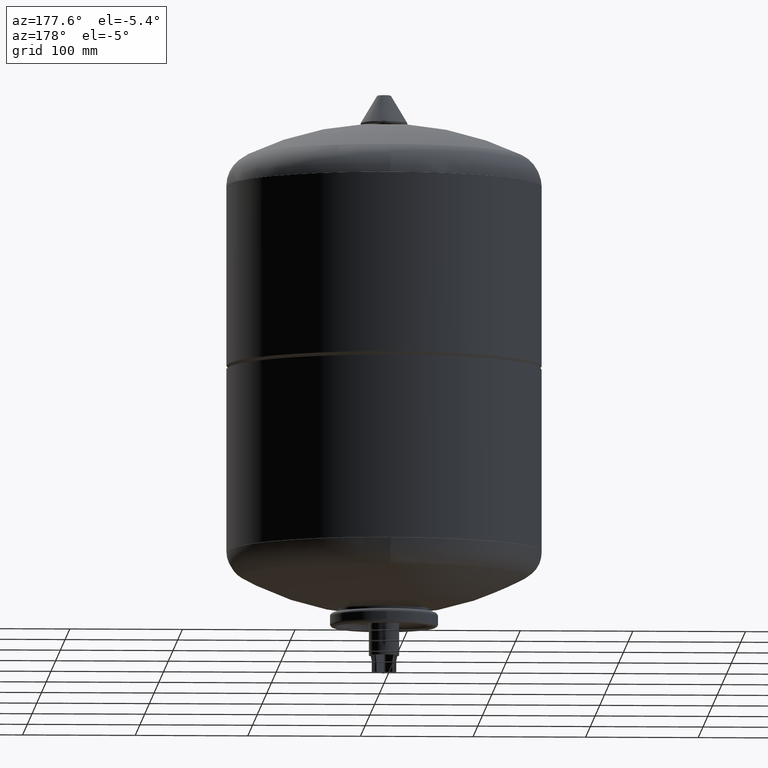
[diagram: clean part render]
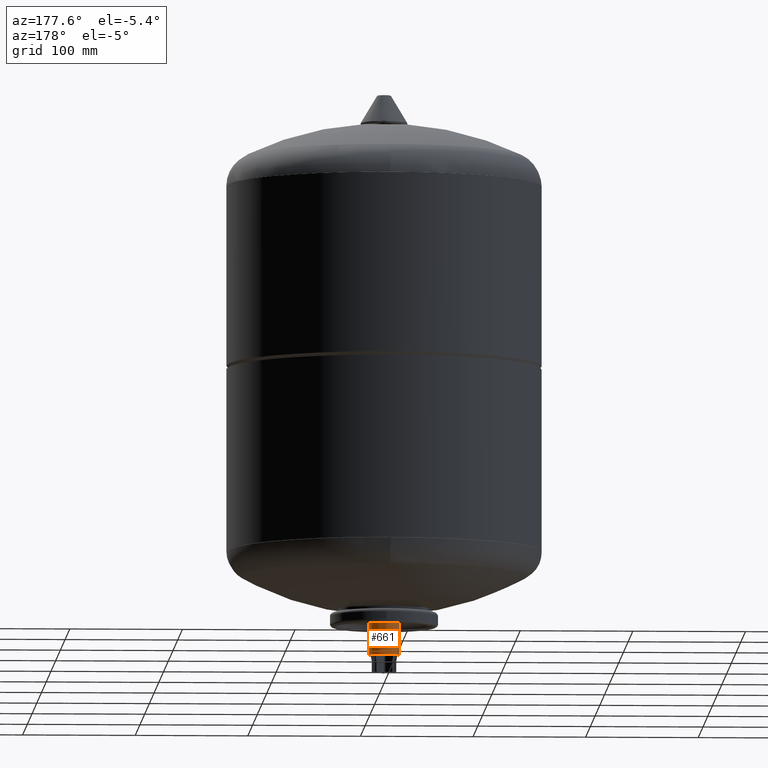
[diagram: same view with one face highlighted and labeled with its STEP entity id]
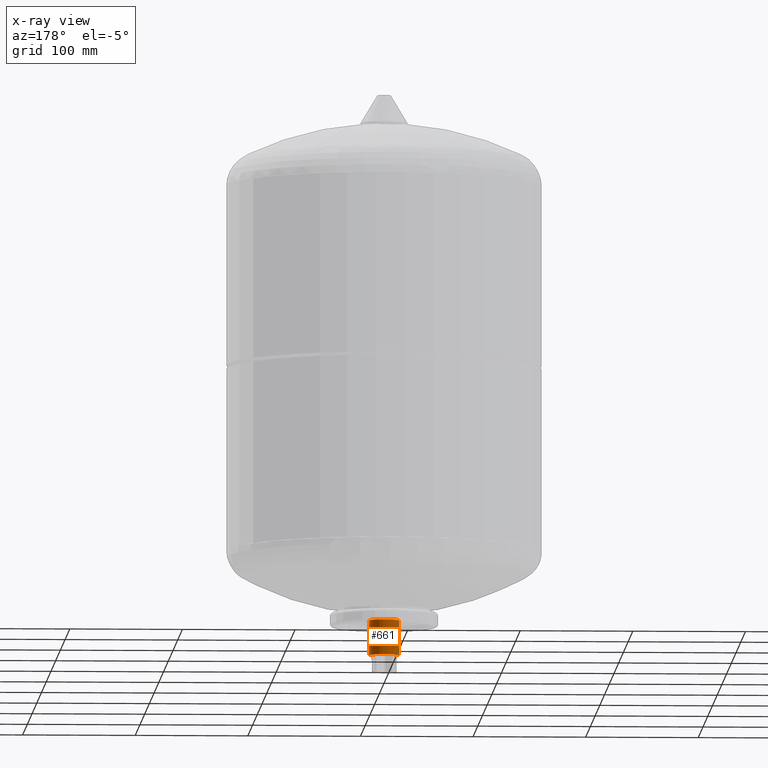
[diagram: x-ray of the same camera — body ghosted, the highlighted face saturated]
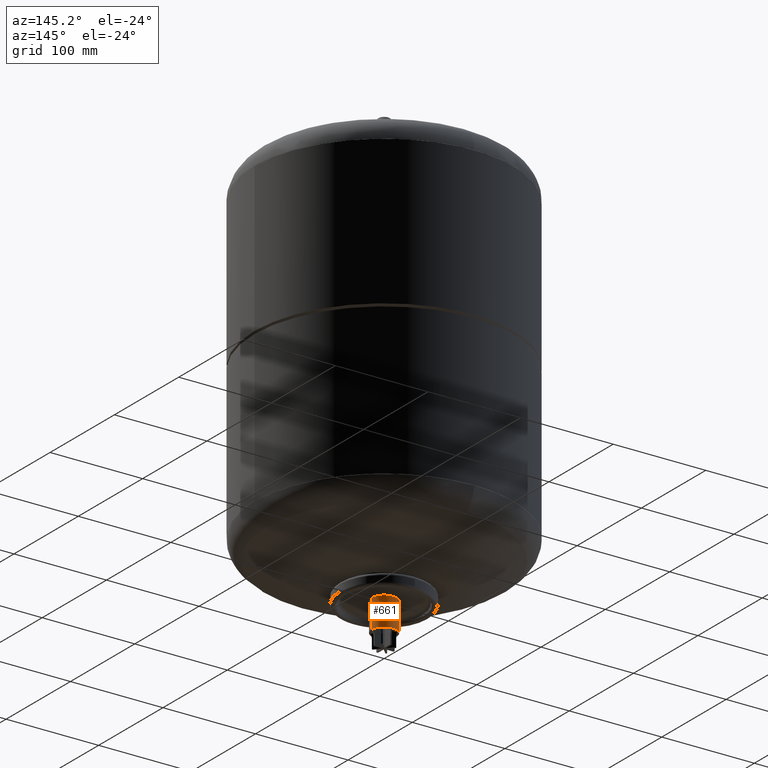
[diagram: same view with one face highlighted and labeled with its STEP entity id]
A machine part, auxiliary view. The second image highlights one B-rep face of the part: STEP entity #661.
The next image is the same camera in x-ray: the body ghosted, the highlighted face saturated — about 0% of this face is hidden behind the body in this view.
A second angle (auxiliary view) of the same face is appended — the face is thin or edge-on in the first view.
In plain terms, the highlighted cylindrical surface (edge-blend (fillet) strip) has radius 13.45 mm, axis along (0, 0, 1).
Its self-contained STEP definition (entity closure, byte-faithful):
#275=CARTESIAN_POINT('',(13.449999999999999,0.0,45.999999999999986));
#276=VERTEX_POINT('',#275);
#277=CARTESIAN_POINT('',(13.449999999999999,0.0,15.0));
#278=VERTEX_POINT('',#277);
#279=CARTESIAN_POINT('',(13.449999999999999,0.0,45.999999999999986));
#280=DIRECTION('',(0.0,0.0,-1.0));
#281=VECTOR('',#280,30.999999999999986);
#282=LINE('',#279,#281);
#283=EDGE_CURVE('',#276,#278,#282,.T.);
#285=CARTESIAN_POINT('',(-13.449999999999999,1.647096E-015,45.999999999999993));
#286=VERTEX_POINT('',#285);
#294=CARTESIAN_POINT('',(-13.449999999999999,-1.647096E-015,15.0));
#295=VERTEX_POINT('',#294);
#296=CARTESIAN_POINT('',(-13.449999999999999,1.647096E-015,45.999999999999993));
#297=DIRECTION('',(0.0,0.0,-1.0));
#298=VECTOR('',#297,30.999999999999993);
#299=LINE('',#296,#298);
#300=EDGE_CURVE('',#286,#295,#299,.T.);
#519=CARTESIAN_POINT('',(0.0,0.0,45.999999999999993));
#520=DIRECTION('',(0.0,0.0,-1.0));
#521=DIRECTION('',(1.0,0.0,0.0));
#522=AXIS2_PLACEMENT_3D('',#519,#520,#521);
#523=CIRCLE('',#522,13.449999999999999);
#524=EDGE_CURVE('',#286,#276,#523,.T.);
#644=CARTESIAN_POINT('',(0.0,0.0,15.0));
#645=DIRECTION('',(0.0,0.0,1.0));
#646=DIRECTION('',(1.0,0.0,0.0));
#647=AXIS2_PLACEMENT_3D('',#644,#645,#646);
#648=CYLINDRICAL_SURFACE('',#647,13.449999999999999);
#649=ORIENTED_EDGE('',*,*,#283,.T.);
#650=CARTESIAN_POINT('',(0.0,0.0,15.0));
#651=DIRECTION('',(0.0,0.0,1.0));
#652=DIRECTION('',(1.0,0.0,0.0));
#653=AXIS2_PLACEMENT_3D('',#650,#651,#652);
#654=CIRCLE('',#653,13.449999999999999);
#655=EDGE_CURVE('',#278,#295,#654,.T.);
#656=ORIENTED_EDGE('',*,*,#655,.T.);
#657=ORIENTED_EDGE('',*,*,#300,.F.);
#658=ORIENTED_EDGE('',*,*,#524,.T.);
#659=EDGE_LOOP('',(#649,#656,#657,#658));
#660=FACE_OUTER_BOUND('',#659,.T.);
#661=ADVANCED_FACE('',(#660),#648,.T.);